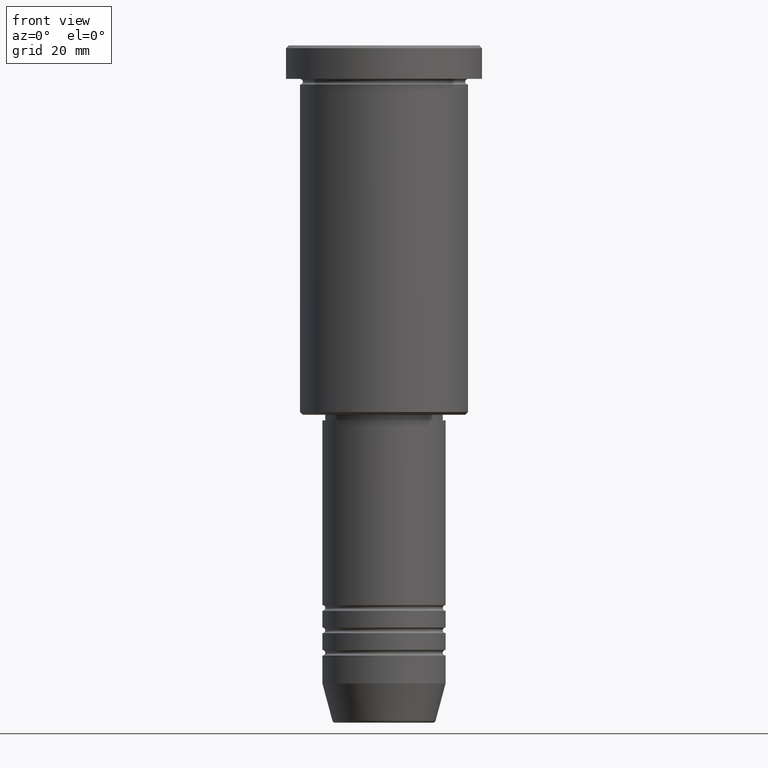
[diagram: clean part render]
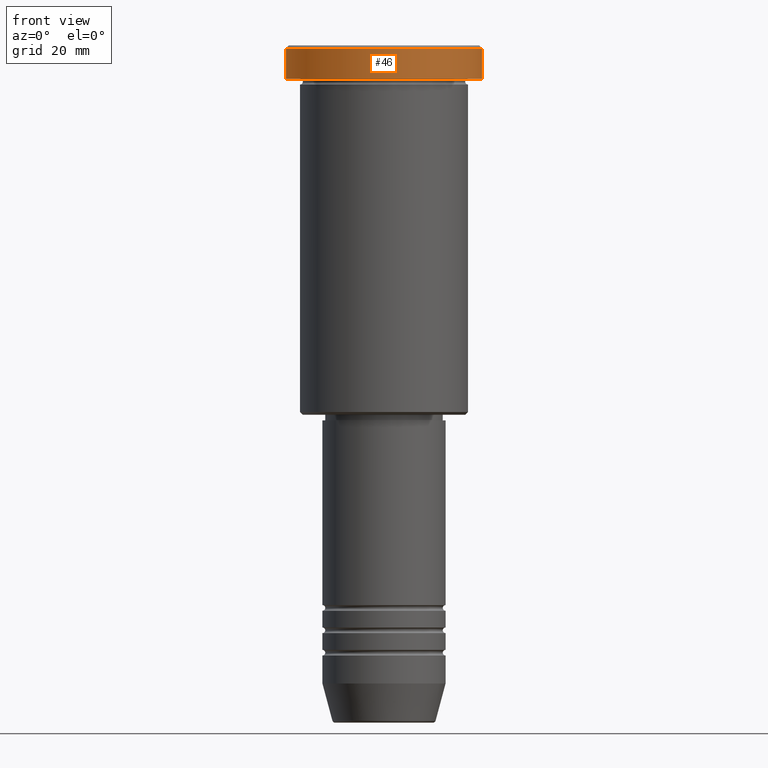
[diagram: same view with one face highlighted and labeled with its STEP entity id]
A machine part, front view. The second image highlights one B-rep face of the part: STEP entity #46.
In plain terms, the highlighted cylindrical surface (partial cylindrical patch) has radius 17.5 mm, axis along (-0, -0, 1).
Its self-contained STEP definition (entity closure, byte-faithful):
#21 = EDGE_CURVE ( 'NONE', #899, #698, #418, .T. ) ;
#42 = DIRECTION ( 'NONE',  ( -0.000000000000000000, -0.000000000000000000, 1.000000000000000000 ) ) ;
#46 = ADVANCED_FACE ( 'NONE', ( #277 ), #189, .T. ) ;
#70 = CARTESIAN_POINT ( 'NONE',  ( 17.50000000000000000, 0.000000000000000000, -0.4999999999999864553 ) ) ;
#75 = VERTEX_POINT ( 'NONE', #662 ) ;
#95 = VERTEX_POINT ( 'NONE', #553 ) ;
#121 = CIRCLE ( 'NONE', #203, 17.50000000000000000 ) ;
#173 = EDGE_CURVE ( 'NONE', #95, #698, #1147, .T. ) ;
#189 = CYLINDRICAL_SURFACE ( 'NONE', #684, 17.50000000000000000 ) ;
#203 = AXIS2_PLACEMENT_3D ( 'NONE', #269, #554, #736 ) ;
#243 = VECTOR ( 'NONE', #42, 1000.000000000000000 ) ;
#269 = CARTESIAN_POINT ( 'NONE',  ( 0.000000000000000000, 0.000000000000000000, -5.999999999999995559 ) ) ;
#273 = EDGE_CURVE ( 'NONE', #75, #899, #717, .T. ) ;
#277 = FACE_OUTER_BOUND ( 'NONE', #988, .T. ) ;
#280 = CARTESIAN_POINT ( 'NONE',  ( 0.000000000000000000, 0.000000000000000000, 0.000000000000000000 ) ) ;
#296 = DIRECTION ( 'NONE',  ( 1.000000000000000000, 0.000000000000000000, 0.000000000000000000 ) ) ;
#381 = DIRECTION ( 'NONE',  ( -0.000000000000000000, -0.000000000000000000, 1.000000000000000000 ) ) ;
#388 = DIRECTION ( 'NONE',  ( 0.000000000000000000, 0.000000000000000000, -1.000000000000000000 ) ) ;
#418 = CIRCLE ( 'NONE', #1003, 17.50000000000000000 ) ;
#460 = CARTESIAN_POINT ( 'NONE',  ( 0.000000000000000000, 0.000000000000000000, -0.4999999999999864553 ) ) ;
#531 = CARTESIAN_POINT ( 'NONE',  ( 17.50000000000000000, 0.000000000000000000, 0.000000000000000000 ) ) ;
#553 = CARTESIAN_POINT ( 'NONE',  ( -17.50000000000000000, 2.143131898507868248E-15, -5.999999999999995559 ) ) ;
#554 = DIRECTION ( 'NONE',  ( -0.000000000000000000, -0.000000000000000000, 1.000000000000000000 ) ) ;
#652 = DIRECTION ( 'NONE',  ( 1.000000000000000000, 0.000000000000000000, 0.000000000000000000 ) ) ;
#653 = ORIENTED_EDGE ( 'NONE', *, *, #21, .T. ) ;
#662 = CARTESIAN_POINT ( 'NONE',  ( 17.50000000000000000, 0.000000000000000000, -5.999999999999995559 ) ) ;
#673 = ORIENTED_EDGE ( 'NONE', *, *, #173, .F. ) ;
#684 = AXIS2_PLACEMENT_3D ( 'NONE', #280, #381, #296 ) ;
#698 = VERTEX_POINT ( 'NONE', #1116 ) ;
#709 = EDGE_CURVE ( 'NONE', #95, #75, #121, .T. ) ;
#717 = LINE ( 'NONE', #531, #1021 ) ;
#736 = DIRECTION ( 'NONE',  ( 1.000000000000000000, 0.000000000000000000, 0.000000000000000000 ) ) ;
#846 = ORIENTED_EDGE ( 'NONE', *, *, #273, .T. ) ;
#874 = DIRECTION ( 'NONE',  ( -0.000000000000000000, -0.000000000000000000, 1.000000000000000000 ) ) ;
#899 = VERTEX_POINT ( 'NONE', #70 ) ;
#938 = CARTESIAN_POINT ( 'NONE',  ( -17.50000000000000000, 2.143131898507868248E-15, 0.000000000000000000 ) ) ;
#988 = EDGE_LOOP ( 'NONE', ( #673, #1170, #846, #653 ) ) ;
#1003 = AXIS2_PLACEMENT_3D ( 'NONE', #460, #388, #652 ) ;
#1021 = VECTOR ( 'NONE', #874, 1000.000000000000000 ) ;
#1116 = CARTESIAN_POINT ( 'NONE',  ( -17.50000000000000000, 2.143131898507868248E-15, -0.4999999999999864553 ) ) ;
#1147 = LINE ( 'NONE', #938, #243 ) ;
#1170 = ORIENTED_EDGE ( 'NONE', *, *, #709, .T. ) ;